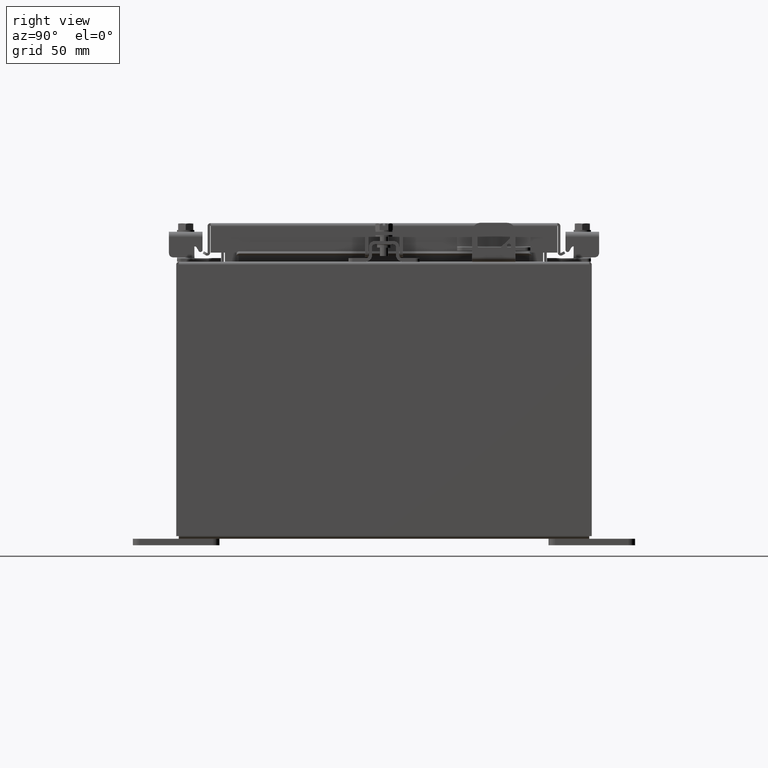
[diagram: clean part render]
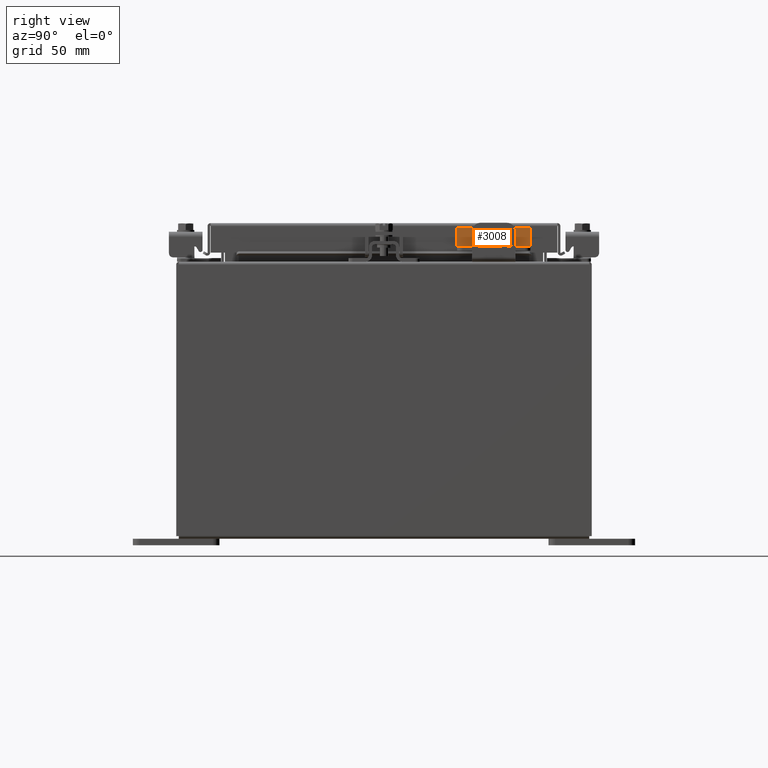
[diagram: same view with one face highlighted and labeled with its STEP entity id]
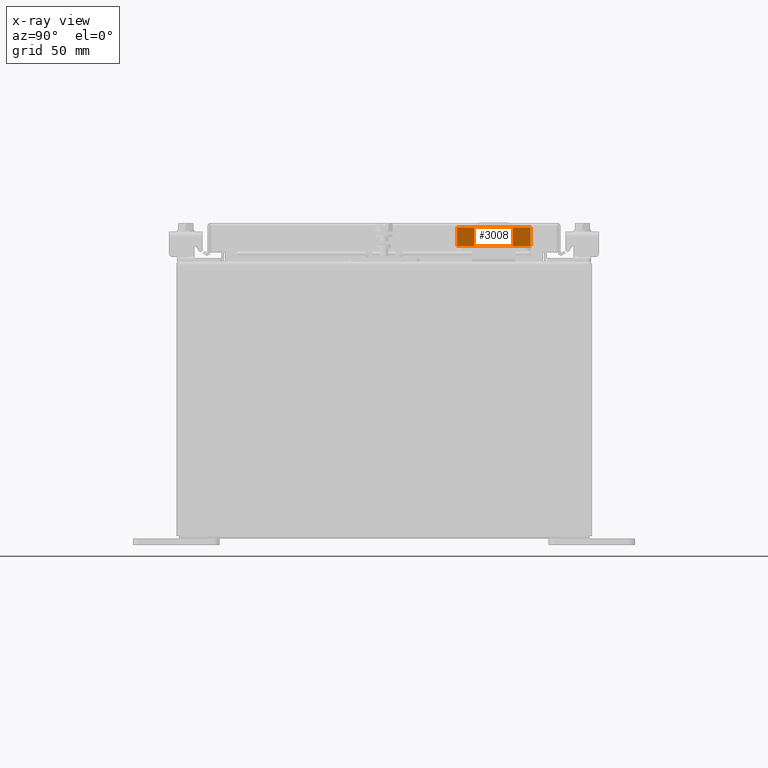
[diagram: x-ray of the same camera — body ghosted, the highlighted face saturated]
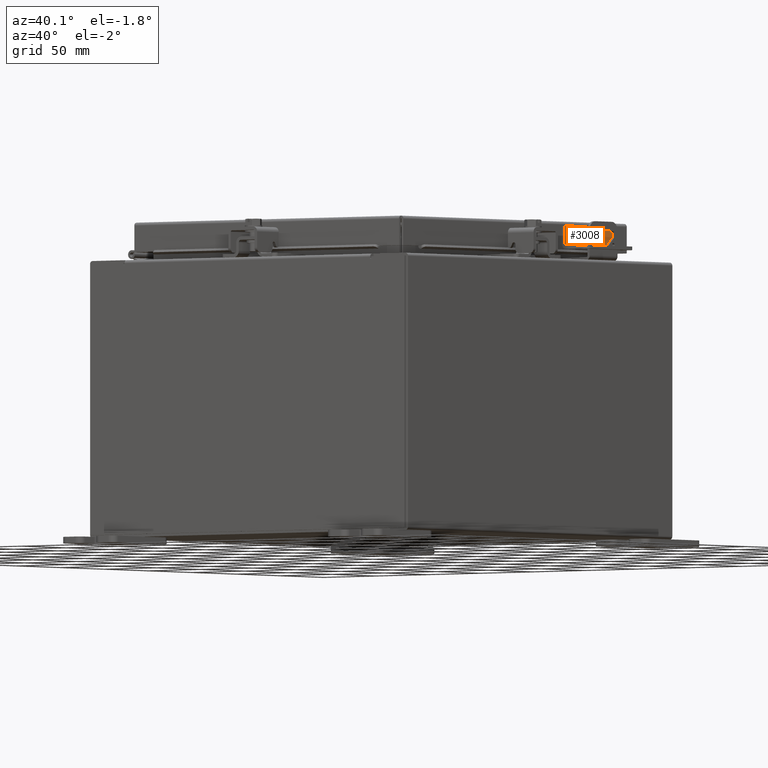
[diagram: same view with one face highlighted and labeled with its STEP entity id]
A machine part, right view. The second image highlights one B-rep face of the part: STEP entity #3008.
The next image is the same camera in x-ray: the body ghosted, the highlighted face saturated — about 0% of this face is hidden behind the body in this view.
A second angle (auxiliary view) of the same face is appended — the face is thin or edge-on in the first view.
In plain terms, the highlighted planar face has unit normal (-1, -0, 0).
Its self-contained STEP definition (entity closure, byte-faithful):
#401 = CARTESIAN_POINT ( 'NONE',  ( 0.1000000000000000100, 0.2699999999999999100, 1.059999999999999600 ) ) ;
#894 = ORIENTED_EDGE ( 'NONE', *, *, #11931, .T. ) ;
#1173 = VERTEX_POINT ( 'NONE', #10397 ) ;
#1864 = EDGE_CURVE ( 'NONE', #1173, #20658, #2533, .T. ) ;
#2027 = FACE_OUTER_BOUND ( 'NONE', #5270, .T. ) ;
#2533 = LINE ( 'NONE', #7455, #16969 ) ;
#3008 = ADVANCED_FACE ( 'NONE', ( #2027 ), #18764, .F. ) ;
#3043 = DIRECTION ( 'NONE',  ( -0.0000000000000000000, -0.0000000000000000000, -1.000000000000000000 ) ) ;
#3733 = DIRECTION ( 'NONE',  ( 0.0000000000000000000, 1.000000000000000000, 0.0000000000000000000 ) ) ;
#4352 = ORIENTED_EDGE ( 'NONE', *, *, #9126, .T. ) ;
#5270 = EDGE_LOOP ( 'NONE', ( #10010, #894, #4352, #10884 ) ) ;
#5448 = VECTOR ( 'NONE', #22047, 39.37007874015748100 ) ;
#5844 = LINE ( 'NONE', #21063, #18557 ) ;
#7455 = CARTESIAN_POINT ( 'NONE',  ( 0.1000000000000000100, -0.2999999999999999900, 1.059999999999999600 ) ) ;
#7570 = CARTESIAN_POINT ( 'NONE',  ( 0.1000000000000000100, -0.2700000000000000700, -1.060000000000000300 ) ) ;
#9126 = EDGE_CURVE ( 'NONE', #15082, #12061, #14207, .T. ) ;
#9818 = DIRECTION ( 'NONE',  ( -1.000000000000000000, 0.0000000000000000000, 0.0000000000000000000 ) ) ;
#10010 = ORIENTED_EDGE ( 'NONE', *, *, #1864, .F. ) ;
#10183 = CARTESIAN_POINT ( 'NONE',  ( 0.1000000000000000100, -0.2999999999999999900, -1.060000000000000300 ) ) ;
#10397 = CARTESIAN_POINT ( 'NONE',  ( 0.1000000000000000100, -0.2700000000000000700, 1.059999999999999600 ) ) ;
#10884 = ORIENTED_EDGE ( 'NONE', *, *, #19611, .F. ) ;
#11931 = EDGE_CURVE ( 'NONE', #1173, #15082, #18741, .T. ) ;
#12061 = VERTEX_POINT ( 'NONE', #20612 ) ;
#14207 = LINE ( 'NONE', #10183, #23263 ) ;
#15082 = VERTEX_POINT ( 'NONE', #23180 ) ;
#16969 = VECTOR ( 'NONE', #3733, 39.37007874015748100 ) ;
#18557 = VECTOR ( 'NONE', #3043, 39.37007874015748100 ) ;
#18741 = LINE ( 'NONE', #7570, #5448 ) ;
#18764 = PLANE ( 'NONE',  #20919 ) ;
#18837 = CARTESIAN_POINT ( 'NONE',  ( 0.1000000000000000100, -0.2999999999999999900, 1.059999999999999600 ) ) ;
#19611 = EDGE_CURVE ( 'NONE', #20658, #12061, #5844, .T. ) ;
#20612 = CARTESIAN_POINT ( 'NONE',  ( 0.1000000000000000100, 0.2699999999999994600, -1.060000000000000300 ) ) ;
#20658 = VERTEX_POINT ( 'NONE', #401 ) ;
#20919 = AXIS2_PLACEMENT_3D ( 'NONE', #18837, #9818, #22466 ) ;
#21021 = DIRECTION ( 'NONE',  ( 0.0000000000000000000, 1.000000000000000000, 0.0000000000000000000 ) ) ;
#21063 = CARTESIAN_POINT ( 'NONE',  ( 0.1000000000000000100, 0.2699999999999999100, 1.059999999999999600 ) ) ;
#22047 = DIRECTION ( 'NONE',  ( 0.0000000000000000000, 0.0000000000000000000, -1.000000000000000000 ) ) ;
#22466 = DIRECTION ( 'NONE',  ( 0.0000000000000000000, 0.0000000000000000000, 1.000000000000000000 ) ) ;
#23180 = CARTESIAN_POINT ( 'NONE',  ( 0.1000000000000000100, -0.2700000000000000700, -1.060000000000000300 ) ) ;
#23263 = VECTOR ( 'NONE', #21021, 39.37007874015748100 ) ;